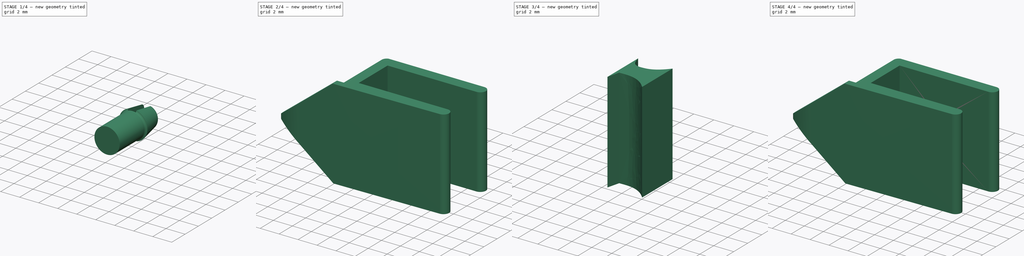
[diagram: build sequence overview — one tinted view per stage of 4, left to right]
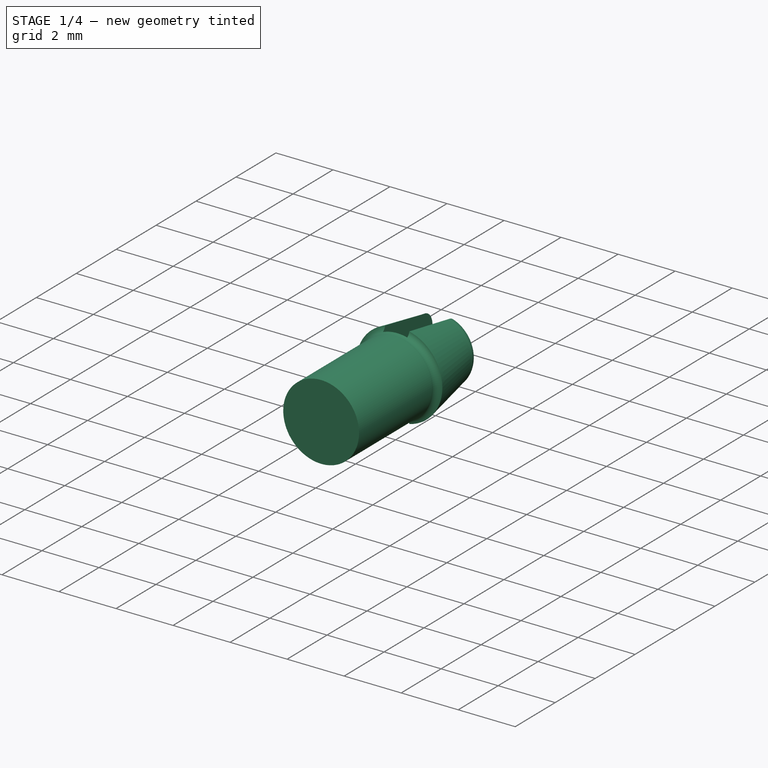
[diagram: stage 1 of 4 — iso view after this stage's code; geometry added in this stage tinted green]
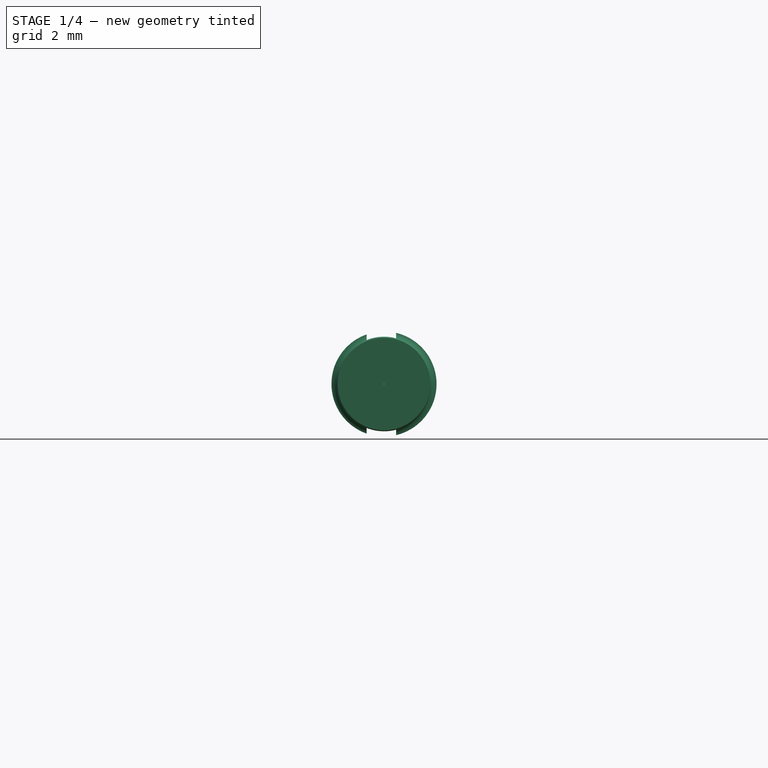
[diagram: stage 1 of 4 — front view after this stage's code; geometry added in this stage tinted green]
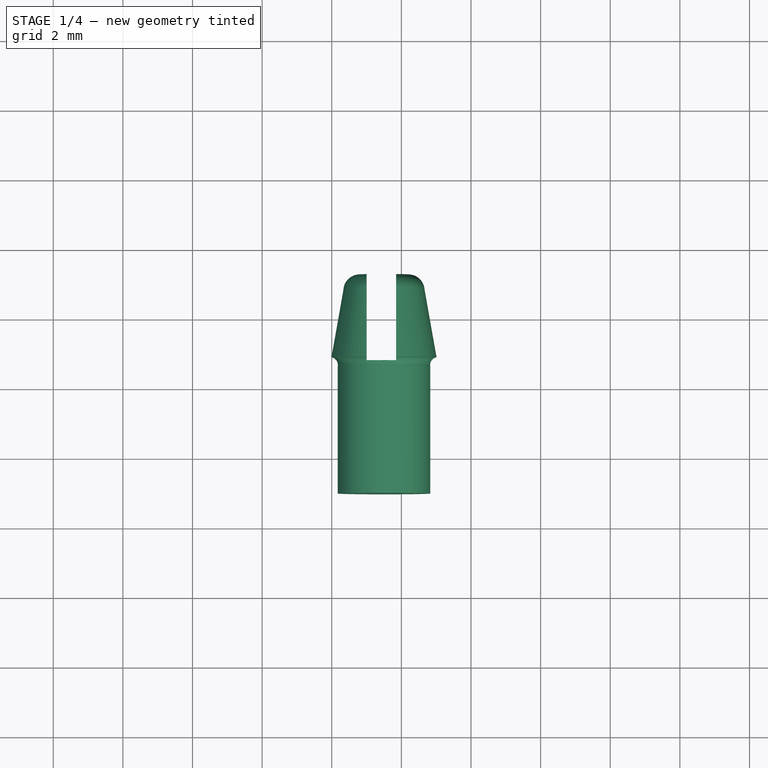
[diagram: stage 1 of 4 — top view after this stage's code; geometry added in this stage tinted green]
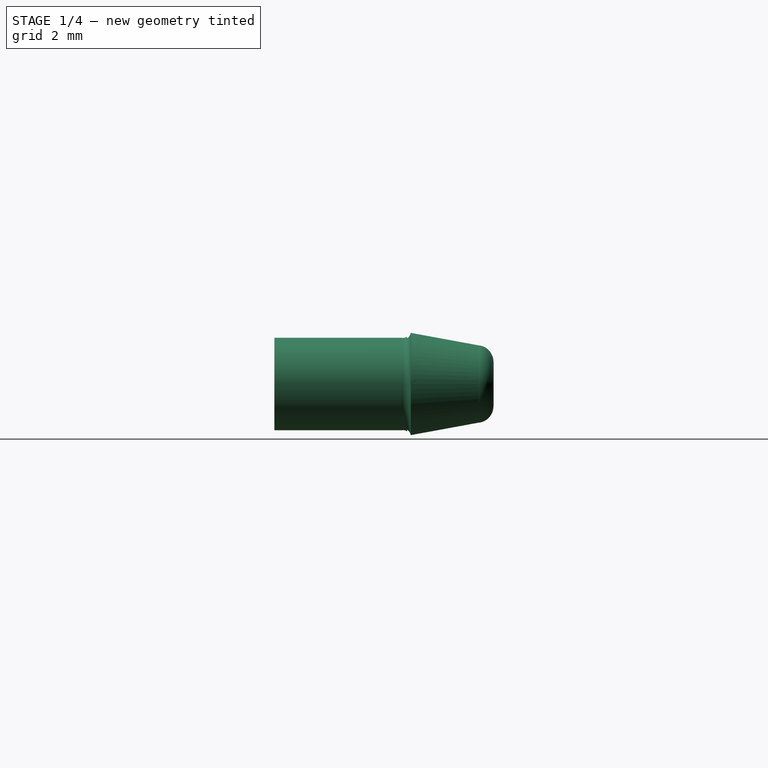
[diagram: stage 1 of 4 — right view after this stage's code; geometry added in this stage tinted green]
FCSTD DOCUMENT  (FreeCAD 0.20R29603 (Git))
Label: clip
License: All rights reserved
LicenseURL: http://en.wikipedia.org/wiki/All_rights_reserved
objects: Sketcher::SketchObject×6, Part::Extrusion×3, Part::Cut×3, Part::MultiFuse×2, Image::ImagePlane×1, Part::Revolution×1, Part::Box×1, Part::Cylinder×1
note: 17 computed .brp shape members not serialized (recipe doc carries the construction recipe); baked Part::Feature solids carry a one-line shape summary decoded from their .brp

FEATURE [Sketcher::SketchObject] Sketch002
  ExternalGeometry = -> [Cut]
  FullyConstrained = false
  MapMode = 5
  Placement = pos=(0,-0.68327,0) rot=(0,0.707107,0.707107;3.14159rad)
  Support = -> [Cut]
  sketch-geometry (1):
    g0: Circle CenterX=4.94003 CenterY=4.73621 CenterZ=0 NormalX=0 NormalY=0 NormalZ=1 AngleXU=0 Radius=1.1
  constraints (1):
    c: Diameter(g0) = 2.2
FEATURE [Sketcher::SketchObject] Sketch003
  FullyConstrained = false
  Placement = pos=(5.7445,0,0) rot=(0,0,1;0rad)
  sketch-geometry (16):
    g0: LineSegment StartX=-7.01686 StartY=3.06715 StartZ=0 EndX=-6.84914 EndY=5.08405 EndZ=0
    g1: ArcOfCircle CenterX=-6.42394 CenterY=5.04869 CenterZ=0 NormalX=0 NormalY=0 NormalZ=1 AngleXU=0 Radius=0.42666 StartAngle=1.43609 EndAngle=3.05863
    g2: ArcOfCircle CenterX=-6.43816 CenterY=4.9438 CenterZ=0 NormalX=0 NormalY=0 NormalZ=1 AngleXU=0 Radius=0.532508 StartAngle=0.255863 EndAngle=1.43609
    g3: LineSegment StartX=-5.92299 StartY=5.07857 StartZ=0 EndX=-5.92299 EndY=2.15776 EndZ=0
    g4: ArcOfCircle CenterX=-5.7445 CenterY=2.15776 CenterZ=0 NormalX=0 NormalY=0 NormalZ=1 AngleXU=0 Radius=0.178488 StartAngle=3.14159 EndAngle=5.00289
    g5: ArcOfCircle CenterX=-5.81628 CenterY=2.39788 CenterZ=0 NormalX=0 NormalY=0 NormalZ=1 AngleXU=0 Radius=0.429108 StartAngle=5.00289 EndAngle=5.7322
    g6: LineSegment StartX=-5.45068 StartY=2.17323 StartZ=0 EndX=-5.45068 EndY=5.074 EndZ=0
    g7: ArcOfCircle CenterX=-5.02402 CenterY=5.074 CenterZ=0 NormalX=0 NormalY=0 NormalZ=1 AngleXU=0 Radius=0.42666 StartAngle=1.79388 EndAngle=3.14159
    g8: ArcOfCircle CenterX=-5.02402 CenterY=5.074 CenterZ=0 NormalX=0 NormalY=0 NormalZ=1 AngleXU=0 Radius=0.42666 StartAngle=0.0463642 EndAngle=1.79388
    g9: LineSegment StartX=-4.59782 StartY=5.09378 StartZ=0 EndX=-4.23624 EndY=3.10247 EndZ=0
    g10: LineSegment StartX=-4.41651 StartY=2.84771 StartZ=0 EndX=-4.41651 EndY=-0.80209 EndZ=0
    g11: LineSegment StartX=-4.41651 StartY=-0.80209 StartZ=0 EndX=-6.75459 EndY=-0.80209 EndZ=0
    g12: LineSegment StartX=-6.75459 StartY=-0.80209 StartZ=0 EndX=-6.75459 EndY=2.84771 EndZ=0
    g13: ArcOfCircle CenterX=-6.97752 CenterY=2.84771 CenterZ=0 NormalX=0 NormalY=0 NormalZ=1 AngleXU=0 Radius=0.222931 StartAngle=7e-16 EndAngle=1.74818
    g14: ArcOfCircle CenterX=-4.19641 CenterY=2.88313 CenterZ=0 NormalX=0 NormalY=0 NormalZ=1 AngleXU=0 Radius=0.222931 StartAngle=1.75042 EndAngle=3.30114
    g15: LineSegment StartX=-5.7445 StartY=2.15776 StartZ=0 EndX=-5.7445 EndY=0 EndZ=0
  constraints (29):
    c: Tangent(g0,g1) = 1.5708
    c: Tangent(g1,g2) = -1.5708
    c: Coincident(g2,g3)
    c: Vertical(g3)
    c: Tangent(g3,g4) = -1.5708
    c: Tangent(g4,g5) = -1.5708
    c: Coincident(g5,g6)
    c: Vertical(g6)
    c: Tangent(g6,g7) = 1.5708
    c: Tangent(g7,g8) = -1.5708
    c: Coincident(g8,g9)
    c: Vertical(g10)
    c: Coincident(g10,g11)
    c: Horizontal(g11)
    c: Coincident(g11,g12)
    c: Tangent(g12,g13) = -1.5708
    c: Coincident(g13,g0)
    c: Vertical(g12)
    c: Equal(g12,g10)
    c: Equal(g8,g7)
    c: Equal(g1,g7)
    c: Perpendicular(g9,g14) = 4.71239
    c: Coincident(g14,g10)
    c: Equal(g0,g9)
    c: Equal(g14,g13)
    c: Coincident(g15,g4)
    c: PointOnObject(g15,g-1)
    c: Vertical(g15)
    c: DistanceX(g15,g-1) = 5.7445
FEATURE [Sketcher::SketchObject] Sketch004
  FullyConstrained = false
  Placement = pos=(5.7445,0,0) rot=(0,0,1;0rad)
  sketch-geometry (10):
    g0: ArcOfCircle CenterX=-5.85625 CenterY=2.37873 CenterZ=0 NormalX=0 NormalY=0 NormalZ=1 AngleXU=0 Radius=0.41945 StartAngle=5.00242 EndAngle=5.69294
    g1: LineSegment StartX=-5.50777 StartY=2.14527 StartZ=0 EndX=-5.50777 EndY=5.01926 EndZ=0
    g2: ArcOfCircle CenterX=-5.04337 CenterY=5.01926 CenterZ=0 NormalX=0 NormalY=0 NormalZ=1 AngleXU=0 Radius=0.464403 StartAngle=1.78772 EndAngle=3.14159
    g3: ArcOfCircle CenterX=-5.04337 CenterY=5.01926 CenterZ=0 NormalX=0 NormalY=0 NormalZ=1 AngleXU=0 Radius=0.464403 StartAngle=0.0663584 EndAngle=1.78772
    g4: LineSegment StartX=-4.57999 StartY=5.05005 StartZ=0 EndX=-4.23492 EndY=3.10282 EndZ=0
    g5: LineSegment StartX=-4.41625 StartY=2.84771 StartZ=0 EndX=-4.41625 EndY=-0.81169 EndZ=0
    g6: LineSegment StartX=-4.41625 StartY=-0.81169 StartZ=0 EndX=-5.7363 EndY=-0.81169 EndZ=0
    g7: ArcOfCircle CenterX=-4.196 CenterY=2.88315 CenterZ=0 NormalX=0 NormalY=0 NormalZ=1 AngleXU=0 Radius=0.223087 StartAngle=1.74618 EndAngle=3.30113
    g8: LineSegment StartX=-5.7445 StartY=2.15776 StartZ=0 EndX=-5.7445 EndY=0 EndZ=0
    g9: LineSegment StartX=-5.7363 StartY=1.97679 StartZ=0 EndX=-5.7363 EndY=-0.81169 EndZ=0
  constraints (18):
    c: Coincident(g0,g1)
    c: Vertical(g1)
    c: Tangent(g1,g2) = 1.5708
    c: Tangent(g2,g3) = -1.5708
    c: Coincident(g3,g4)
    c: Vertical(g5)
    c: Coincident(g5,g6)
    c: Horizontal(g6)
    c: Equal(g3,g2)
    c: Perpendicular(g4,g7) = 4.71239
    c: Coincident(g7,g5)
    c: PointOnObject(g8,g-1)
    c: Vertical(g8)
    c: DistanceX(g8,g-1) = 5.7445
    c: Coincident(g9,g0)
    c: Coincident(g9,g6)
    c: Vertical(g9)
    c: Diameter(g0) = 0.8389
FEATURE [Part::Revolution] Revolve
  Angle = 360
  Axis = (0,1,0)
  Base = (0,0,0)
  FaceMakerClass = Part::FaceMakerBullseye
  Solid = true
  Source = -> Sketch004
  Symmetric = false
FEATURE [Part::Box] Box  label="Cube"
  AttacherType = Attacher::AttachEngine3D
  Height = 10
  Length = 0.85
  Placement = pos=(-0.5,3,-2.8) rot=(0,0,1;0rad)
  Width = 10
FEATURE [Part::Cut] Cut001  label="pin"
  Base = -> Revolve
  Placement = pos=(-4.5,-0.2,4.3) rot=(0,0,1;0rad)
  Tool = -> Box
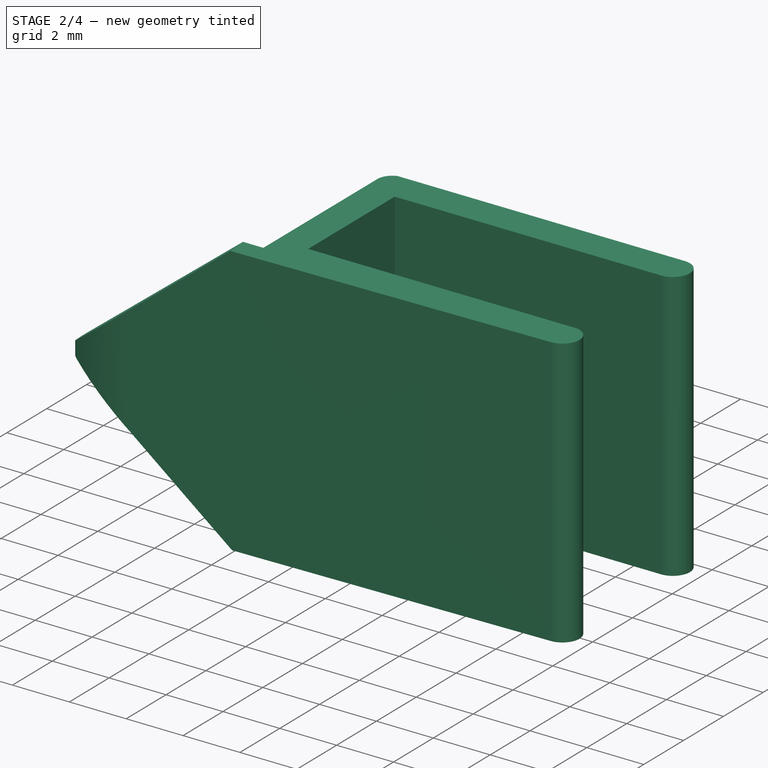
[diagram: stage 2 of 4 — iso view after this stage's code; geometry added in this stage tinted green]
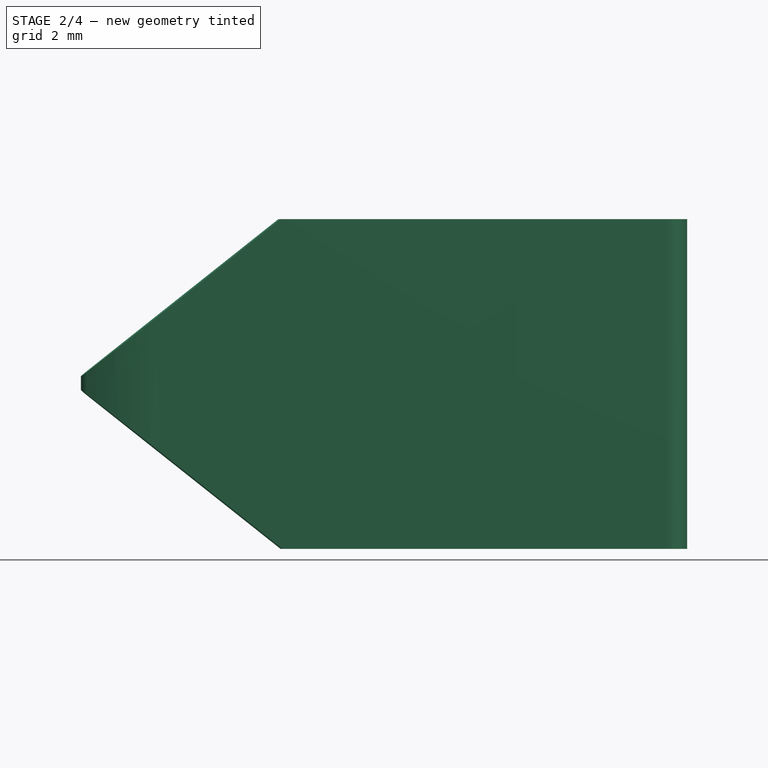
[diagram: stage 2 of 4 — front view after this stage's code; geometry added in this stage tinted green]
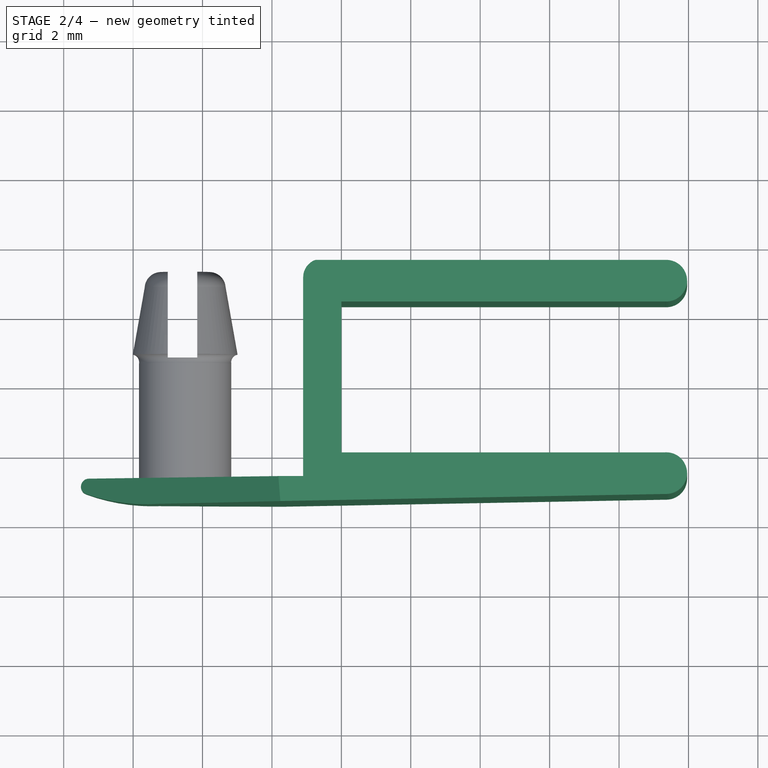
[diagram: stage 2 of 4 — top view after this stage's code; geometry added in this stage tinted green]
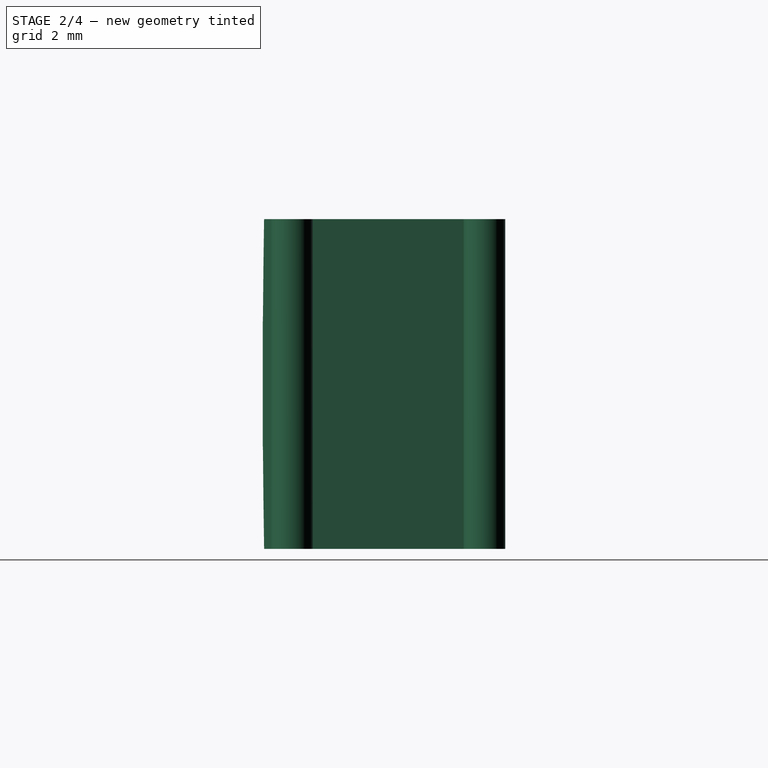
[diagram: stage 2 of 4 — right view after this stage's code; geometry added in this stage tinted green]
FEATURE [Image::ImagePlane] ImagePlane
  Placement = pos=(0,2.65,0) rot=(0,0,1;-0.034907rad)
  XSize = 44.6269
  YSize = 29.7513
FEATURE [Sketcher::SketchObject] Sketch
  FullyConstrained = false
  sketch-geometry (17):
    g0: ArcOfCircle CenterX=9.35953 CenterY=-0.598933 CenterZ=0 NormalX=0 NormalY=0 NormalZ=1 AngleXU=0 Radius=0.6 StartAngle=4.71239 EndAngle=7.91363
    g1: ArcOfCircle CenterX=-5.53153 CenterY=4.02904 CenterZ=0 NormalX=0 NormalY=0 NormalZ=1 AngleXU=0 Radius=5.47097 StartAngle=4.37392 EndAngle=4.76366
    g2: ArcOfCircle CenterX=-7.27121 CenterY=-0.912991 CenterZ=0 NormalX=0 NormalY=0 NormalZ=1 AngleXU=0 Radius=0.231674 StartAngle=1.70075 EndAngle=4.37392
    g3: LineSegment StartX=-7.30124 StartY=-0.68327 StartZ=0 EndX=-1.1 EndY=-0.68327 EndZ=0
    g4: LineSegment StartX=-1.1 StartY=-0.68327 StartZ=0 EndX=-1.1 EndY=5.045 EndZ=0
    g5: ArcOfCircle CenterX=-0.568359 CenterY=5.045 CenterZ=0 NormalX=0 NormalY=0 NormalZ=1 AngleXU=0 Radius=0.531641 StartAngle=1.91256 EndAngle=3.14159
    g6: LineSegment StartX=-0.746536 StartY=5.54589 StartZ=0 EndX=9.35953 EndY=5.54589 EndZ=0
    g7: ArcOfCircle CenterX=9.35953 CenterY=4.94589 CenterZ=0 NormalX=0 NormalY=0 NormalZ=1 AngleXU=0 Radius=0.6 StartAngle=4.65274 EndAngle=7.85398
    g8: LineSegment StartX=9.32377 StartY=4.34696 StartZ=0 EndX=0 EndY=4.34696 EndZ=0
    g9: LineSegment StartX=0 StartY=4.34696 StartZ=0 EndX=0 EndY=0 EndZ=0
    g10: Circle CenterX=-5.25112 CenterY=-1.43474 CenterZ=0 NormalX=0 NormalY=0 NormalZ=1 AngleXU=0 Radius=1
    g11: Circle CenterX=0.221121 CenterY=-1.40574 CenterZ=0 NormalX=0 NormalY=0 NormalZ=1 AngleXU=0 Radius=1
    g12: Circle CenterX=9.35953 CenterY=-1.19893 CenterZ=0 NormalX=0 NormalY=0 NormalZ=1 AngleXU=0 Radius=1
    g13: BSplineCurve PolesCount=3 KnotsCount=2 Degree=2 IsPeriodic=0
    g14: GeomPoint X=-5.25112 Y=-1.43474 Z=0
    g15: GeomPoint X=9.35953 Y=-1.19893 Z=0
    g16: LineSegment StartX=9.32377 StartY=0 StartZ=0 EndX=0 EndY=0 EndZ=0
  constraints (33):
    c: Tangent(g1,g2) = -1.5708
    c: Coincident(g2,g3)
    c: Coincident(g3,g4)
    c: Vertical(g4)
    c: Tangent(g4,g5) = 1.5708
    c: Coincident(g5,g6)
    c: Horizontal(g6)
    c: Tangent(g6,g7) = 1.5708
    c: Coincident(g7,g8)
    c: Horizontal(g8)
    c: Coincident(g9,g8)
    c: Vertical(g9)
    c: Equal(g7,g0)
    c: Coincident(g13,g1)
    c: Equal(g10,g11)
    c: Equal(g10,g12)
    c: Coincident(g13,g0)
    c: InternalAlignment(g10,g13)
    c: InternalAlignment(g11,g13)
    c: InternalAlignment(g12,g13)
    c: InternalAlignment(g14,g13)
    c: InternalAlignment(g15,g13)
    c: Vertical(g0,g6)
    c: Vertical(g6,g0)
    c: Coincident(g16,g0)
    c: Coincident(g16,g9)
    c: Horizontal(g16)
    c: Equal(g8,g16)
    c: Horizontal(g3)
    c: Diameter(g7) = 1.2
    c: DistanceX(g3) = -1.1
    c: DistanceY(g5) = 5.045
    c: Coincident(g9,g-1)
FEATURE [Part::Extrusion] Extrude  label="baseBody"
  Base = -> Sketch
  Dir = (0,0,4)
  DirMode = 0
  FaceMakerClass = Part::FaceMakerBullseye
  LengthFwd = 9.5
  LengthRev = 0
  Solid = true
  Symmetric = false
FEATURE [Sketcher::SketchObject] Sketch001
  ExternalGeometry = -> [Extrude]
  FullyConstrained = false
  MapMode = 5
  Placement = pos=(0,-0.68327,0) rot=(0,0.707107,0.707107;3.14159rad)
  Support = -> [Extrude]
  sketch-geometry (7):
    g0: GeomPoint X=7.35924 Y=4.75 Z=0
    g1: LineSegment StartX=7.7712 StartY=4.77356 StartZ=0 EndX=1.81557 EndY=9.5 EndZ=0
    g2: LineSegment StartX=7.7712 StartY=-0.114134 StartZ=0 EndX=1.63615 EndY=-0.091661 EndZ=0
    g3: LineSegment StartX=1.63615 StartY=-0.091661 StartZ=0 EndX=7.7712 EndY=4.77356 EndZ=0
    g4: LineSegment StartX=1.81557 StartY=9.5 StartZ=0 EndX=7.7712 EndY=9.5 EndZ=0
    g5: LineSegment StartX=7.7712 StartY=9.5 StartZ=0 EndX=7.7712 EndY=4.77356 EndZ=0
    g6: LineSegment StartX=7.7712 StartY=-0.114134 StartZ=0 EndX=7.7712 EndY=4.77356 EndZ=0
  constraints (11):
    c: PointOnObject(g1,g-3)
    c: Coincident(g2,g3)
    c: Coincident(g1,g3)
    c: Coincident(g4,g1)
    c: Horizontal(g4)
    c: Coincident(g5,g4)
    c: Coincident(g5,g1)
    c: Vertical(g5)
    c: Coincident(g6,g2)
    c: Coincident(g6,g1)
    c: Vertical(g6)
FEATURE [Part::Extrusion] Extrude001
  Base = -> Sketch001
  Dir = (-0.0798,0.9968,0)
  DirMode = 0
  FaceMakerClass = Part::FaceMakerBullseye
  LengthFwd = 5
  LengthRev = 0
  Solid = true
  Symmetric = true
FEATURE [Part::Cut] Cut  label="base"
  Base = -> Extrude
  Tool = -> Extrude001
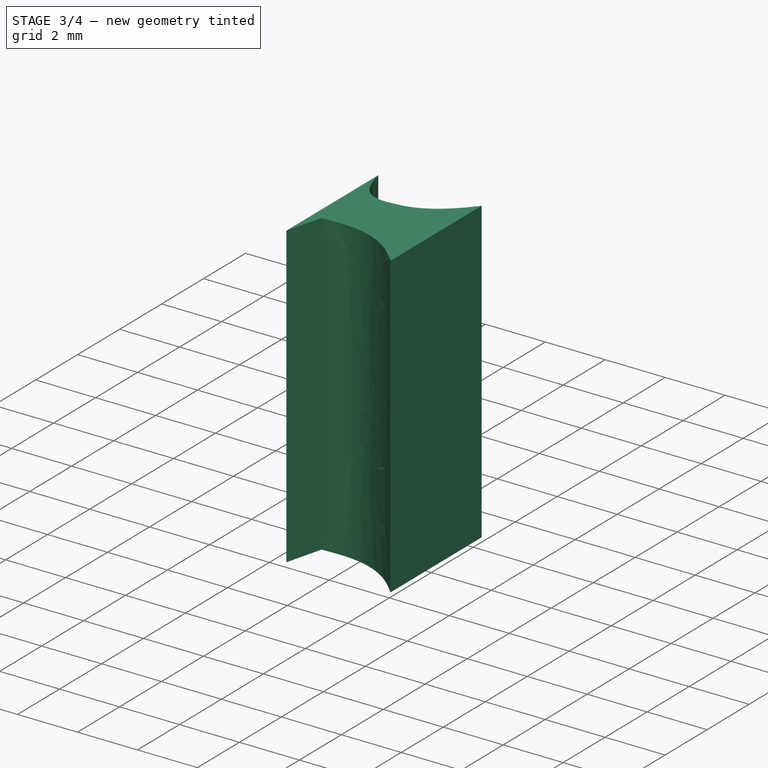
[diagram: stage 3 of 4 — iso view after this stage's code; geometry added in this stage tinted green]
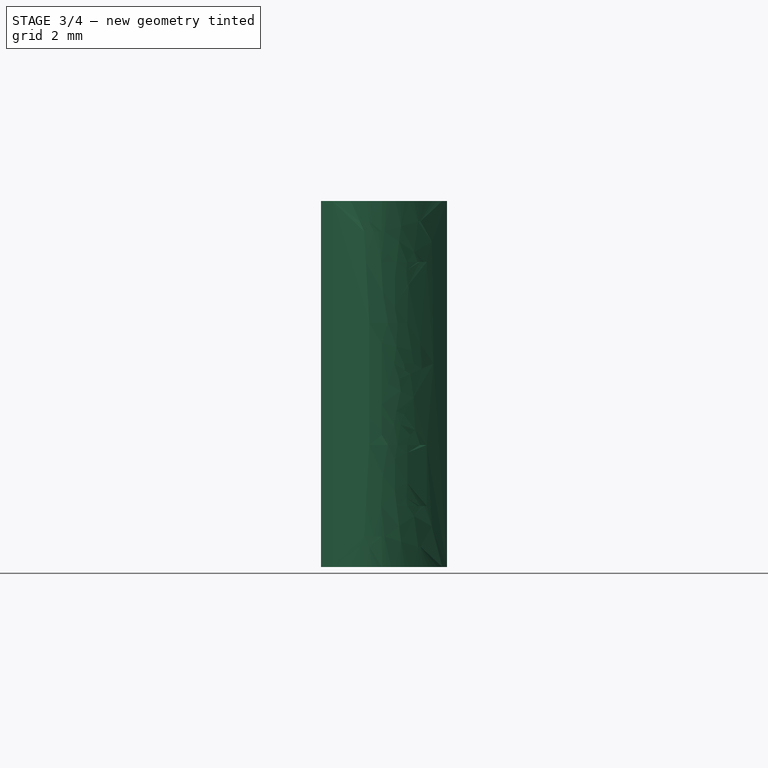
[diagram: stage 3 of 4 — front view after this stage's code; geometry added in this stage tinted green]
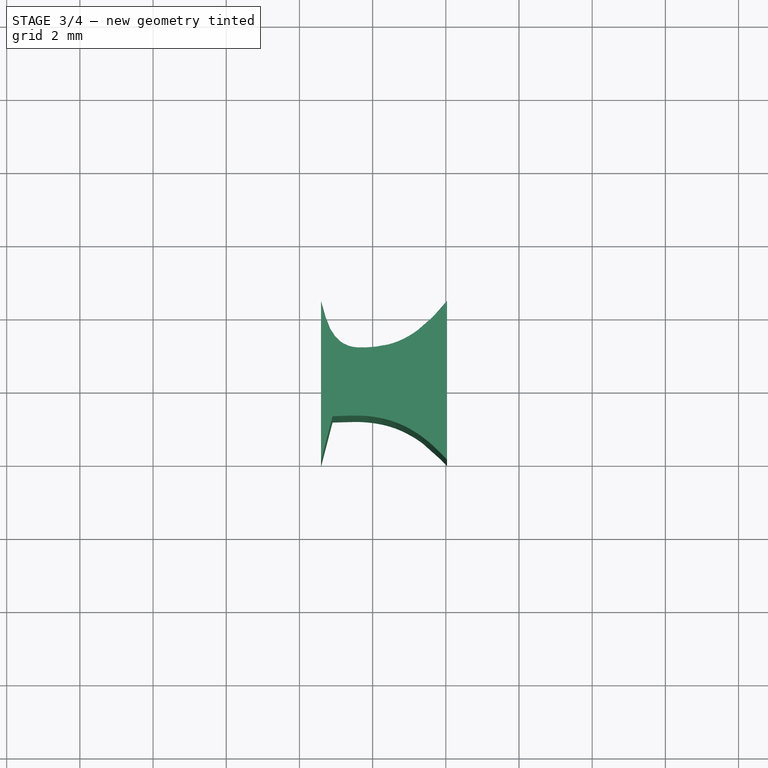
[diagram: stage 3 of 4 — top view after this stage's code; geometry added in this stage tinted green]
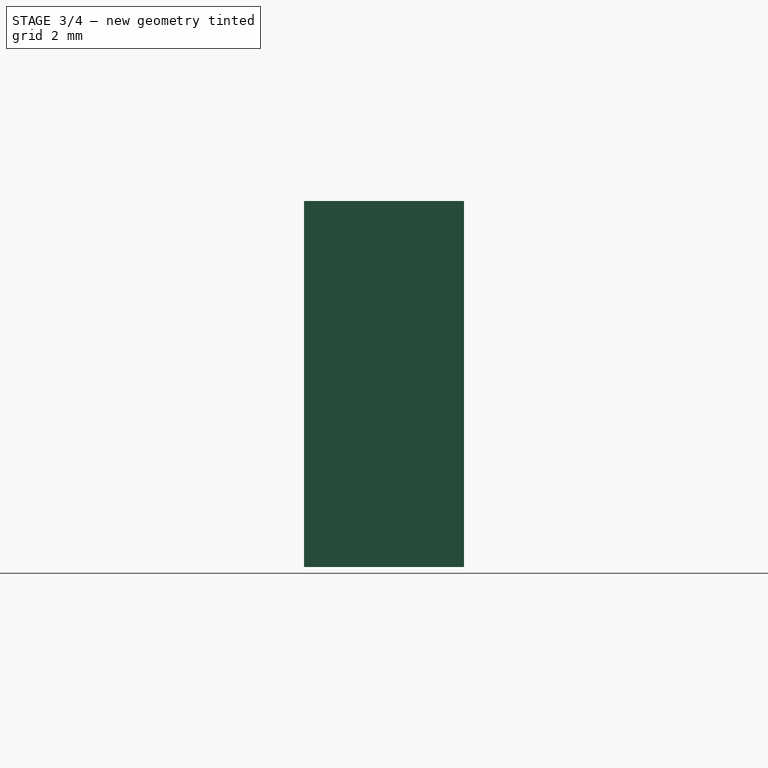
[diagram: stage 3 of 4 — right view after this stage's code; geometry added in this stage tinted green]
FEATURE [Part::MultiFuse] Fusion  label="base+pin"
  Shapes = -> [Cut,Cut001]
FEATURE [Sketcher::SketchObject] Sketch005
  ExternalGeometry = -> [Fusion]
  FullyConstrained = false
  sketch-geometry (20):
    g0: LineSegment StartX=0 StartY=4.04278 StartZ=0 EndX=0 EndY=0 EndZ=0
    g1-g5: Circle x5 (B-spline internal-alignment scaffolding for g6; pole/knot coordinates omitted)
    g6: BSplineCurve PolesCount=5 KnotsCount=3 Degree=3 IsPeriodic=0
    g7: GeomPoint X=2.58795 Y=4.34696 Z=0
    g8: GeomPoint X=3.93037 Y=3.08058 Z=0
    g9: GeomPoint X=6.0343 Y=4.34696 Z=0
    g10-g13: Circle x4 (B-spline internal-alignment scaffolding for g14; pole/knot coordinates omitted)
    g14: BSplineCurve PolesCount=4 KnotsCount=2 Degree=3 IsPeriodic=0
    g15: GeomPoint X=2.90509 Y=1.1917 Z=0
    g16: GeomPoint X=6.0343 Y=0 Z=0
    g17: LineSegment StartX=2.90509 StartY=1.1917 StartZ=0 EndX=2.58795 EndY=-0.028534 EndZ=0
    g18: LineSegment StartX=2.58795 StartY=-0.028534 StartZ=0 EndX=2.58795 EndY=4.34696 EndZ=0
    g19: LineSegment StartX=6.0343 StartY=4.34696 StartZ=0 EndX=6.0343 EndY=0 EndZ=0
  constraints (31):
    c: PointOnObject(g0,g-2)
    c: Coincident(g0,g-1)
    c: Weight(g1) = 1
    c: PointOnObject(g6,g-3)
    c: Equal(g1,g2)
    c: Equal(g1,g3)
    c: PointOnObject(g3,g2)
    c: Equal(g1,g4)
    c: Equal(g1,g5)
    c: PointOnObject(g6,g-3)
    c: InternalAlignment(g1-g5 -> g6) x5
    c: InternalAlignment(g7,g6)
    c: InternalAlignment(g8,g6)
    c: InternalAlignment(g9,g6)
    c: Weight(g10) = 1
    c: Equal(g10,g11)
    c: PointOnObject(g11,g10)
    c: Equal(g10,g12)
    c: PointOnObject(g12,g11)
    c: Equal(g10,g13)
    c: PointOnObject(g14,g-4)
    c: InternalAlignment(g10-g13 -> g14) x4
    c: InternalAlignment(g15,g14)
    c: InternalAlignment(g16,g14)
    c: Coincident(g17,g14)
    c: Coincident(g17,g18)
    c: Coincident(g18,g6)
    c: Vertical(g18)
    c: Coincident(g19,g6)
    c: Coincident(g19,g14)
    c: Vertical(g19)
FEATURE [Part::Extrusion] Extrude002
  Base = -> Sketch005
  Dir = (0,0,1)
  DirMode = 2
  FaceMakerClass = Part::FaceMakerBullseye
  LengthFwd = 10
  LengthRev = 0
  Solid = true
  Symmetric = false
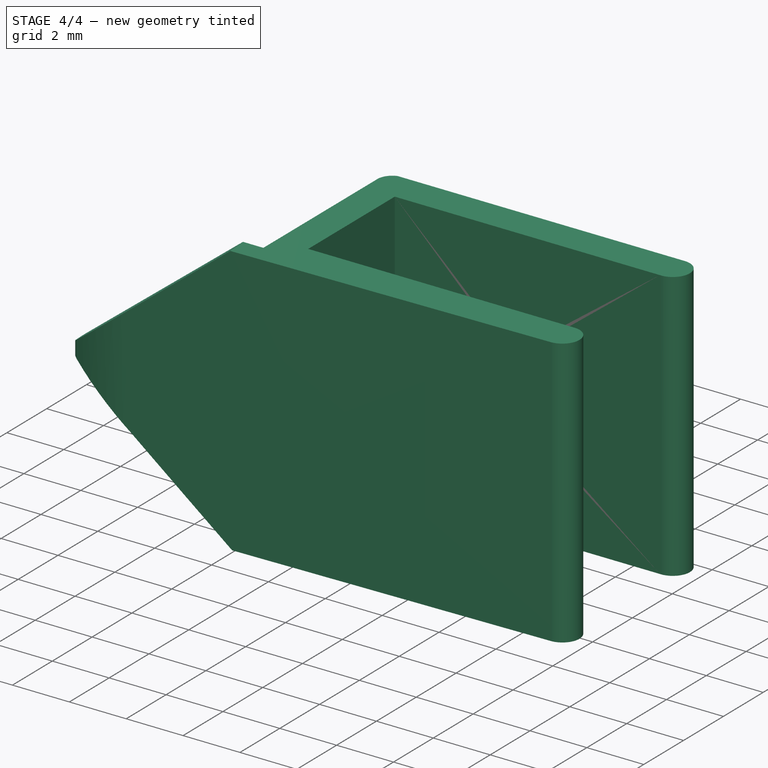
[diagram: stage 4 of 4 — iso view after this stage's code; geometry added in this stage tinted green]
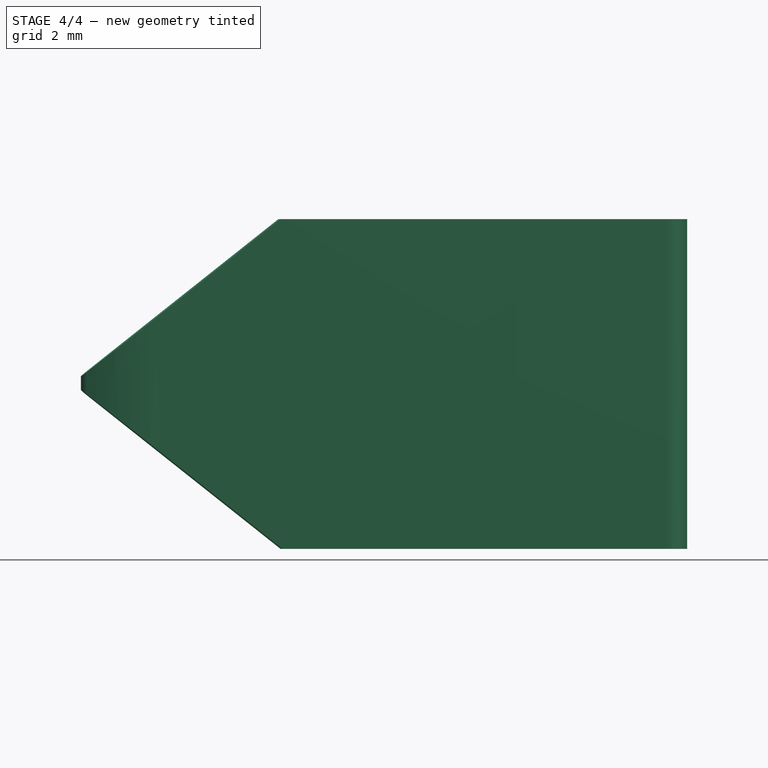
[diagram: stage 4 of 4 — front view after this stage's code; geometry added in this stage tinted green]
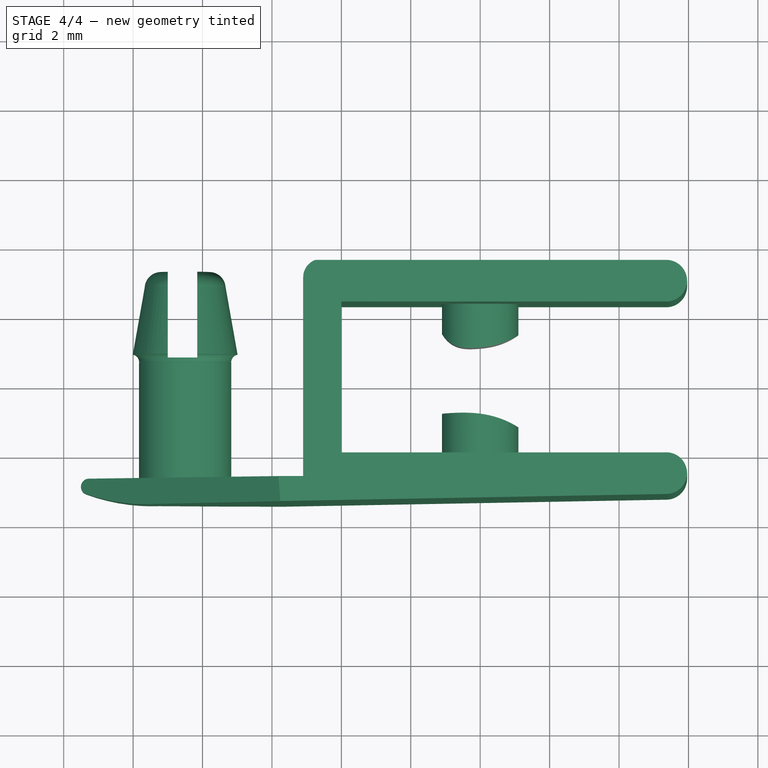
[diagram: stage 4 of 4 — top view after this stage's code; geometry added in this stage tinted green]
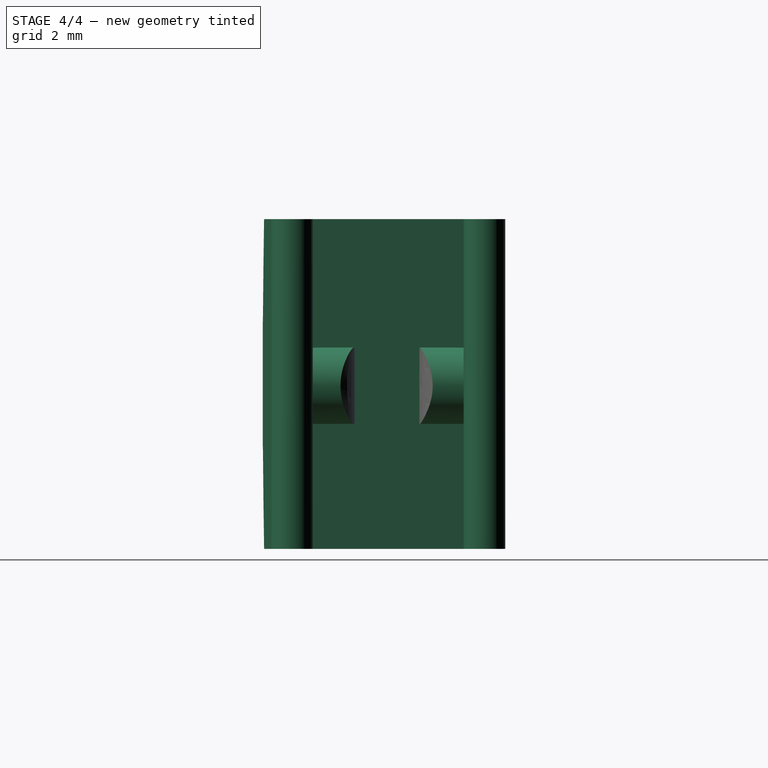
[diagram: stage 4 of 4 — right view after this stage's code; geometry added in this stage tinted green]
FEATURE [Part::Cylinder] Cylinder
  Angle = 360
  AttacherType = Attacher::AttachEngine3D
  FirstAngle = 0
  Height = 6
  Placement = pos=(4,5.1,4.7) rot=(1,0,0;1.5708rad)
  Radius = 1.1
  SecondAngle = 0
FEATURE [Part::Cut] Cut002
  Base = -> Cylinder
  Tool = -> Extrude002
FEATURE [Part::MultiFuse] Fusion001
  Shapes = -> [Cut002,Fusion]
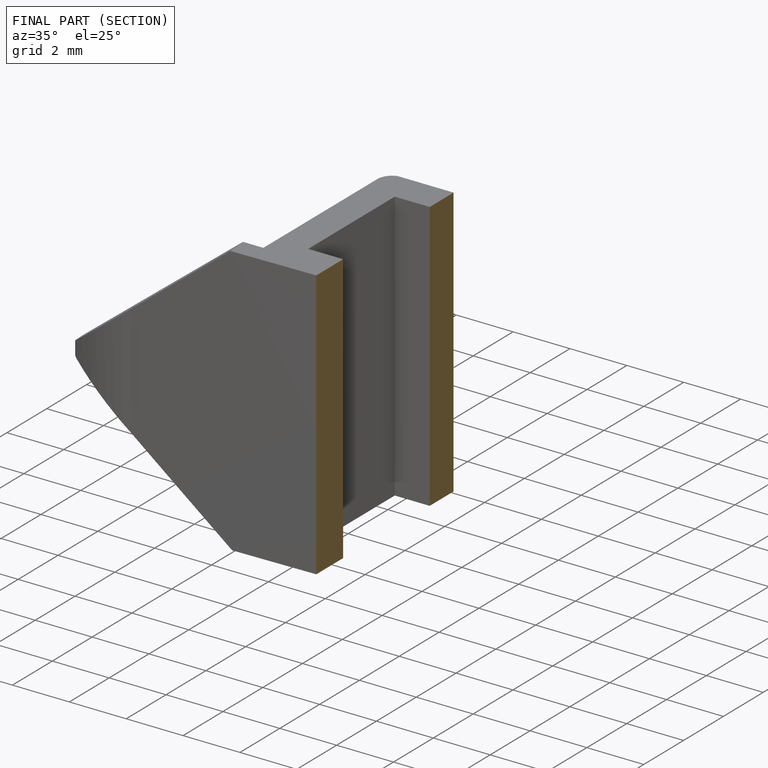
[diagram: finished part — half-section view (interior)]
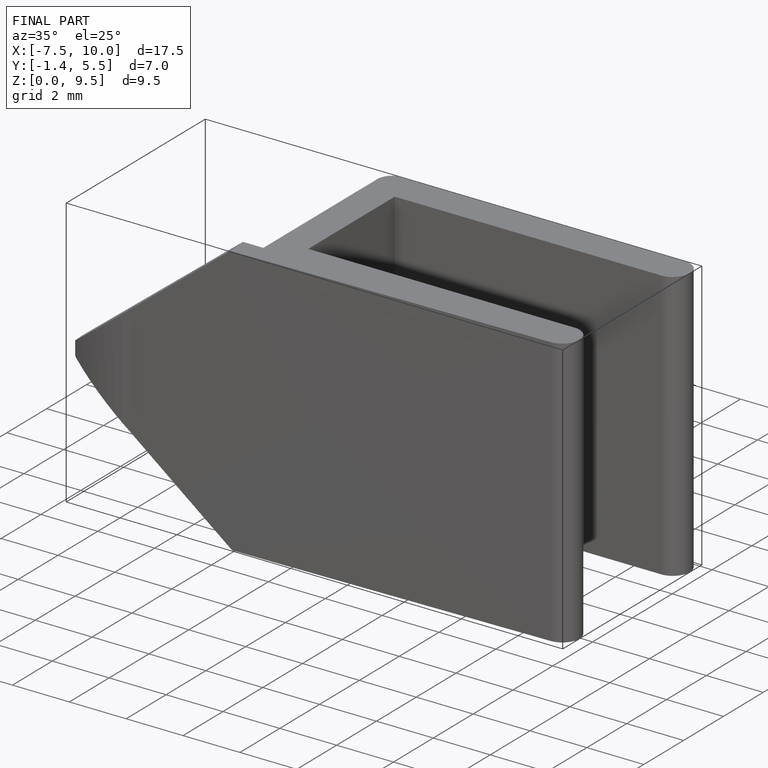
[diagram: finished part — iso view with bounding-box wireframe]
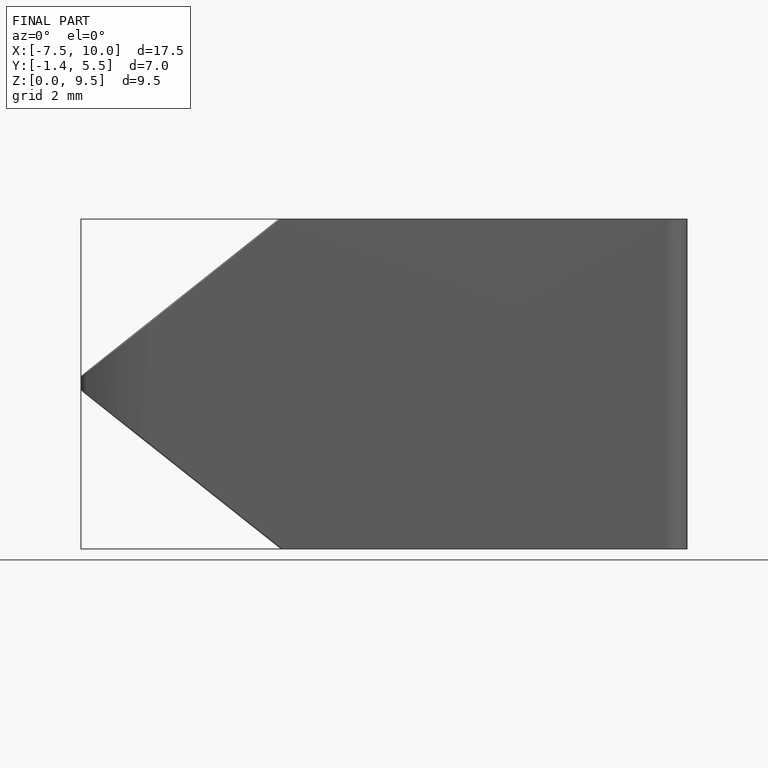
[diagram: finished part — front view with bounding-box wireframe]
